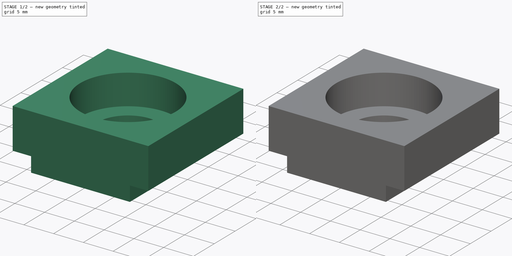
[diagram: build sequence overview — one tinted view per stage of 2, left to right]
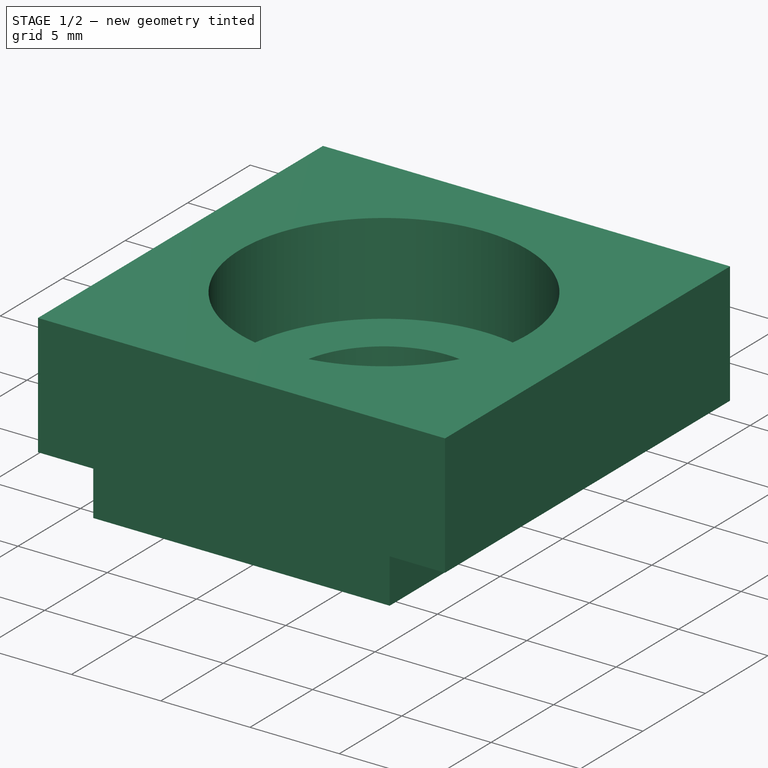
[diagram: stage 1 of 2 — iso view after this stage's code; geometry added in this stage tinted green]
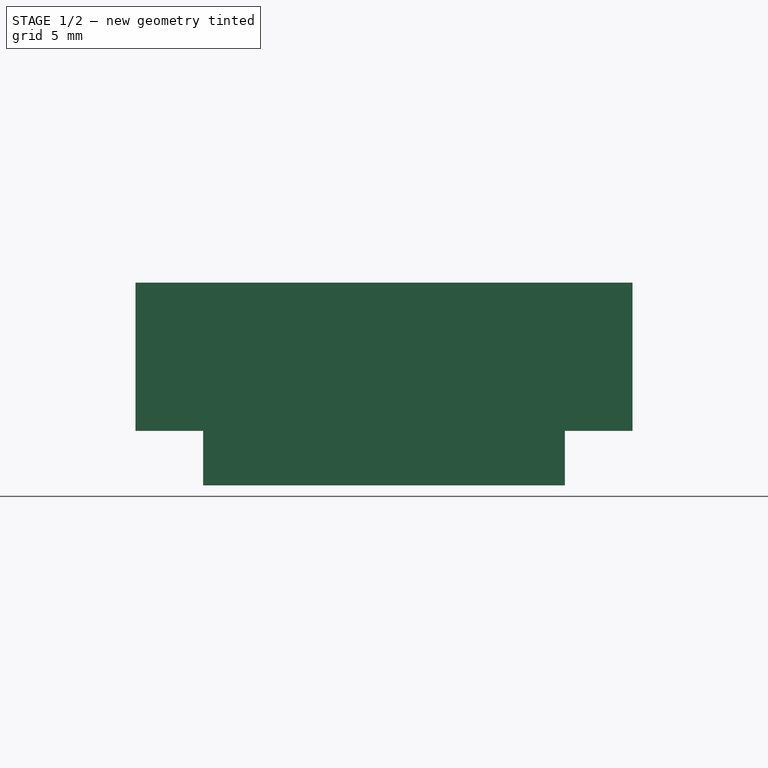
[diagram: stage 1 of 2 — front view after this stage's code; geometry added in this stage tinted green]
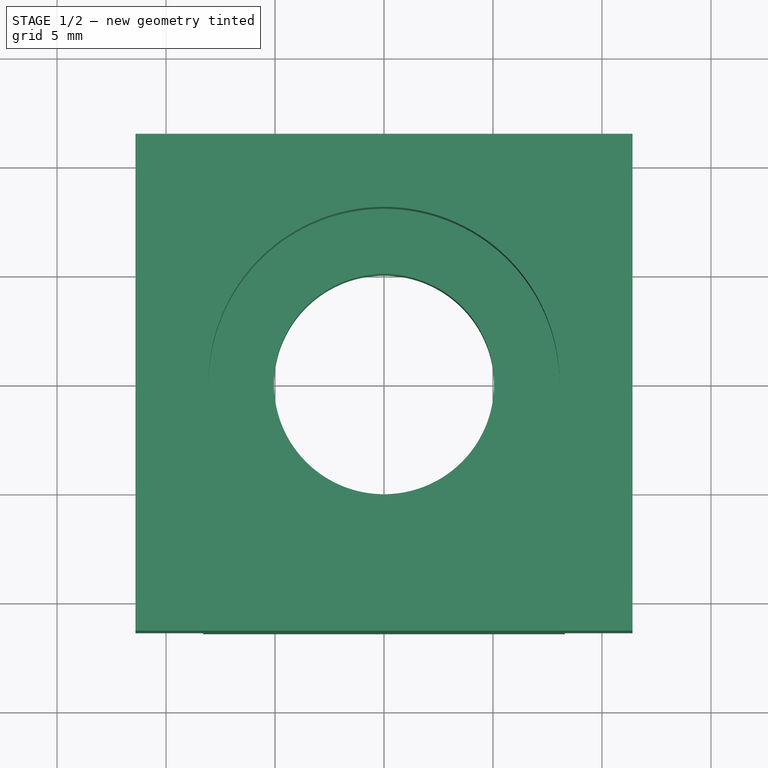
[diagram: stage 1 of 2 — top view after this stage's code; geometry added in this stage tinted green]
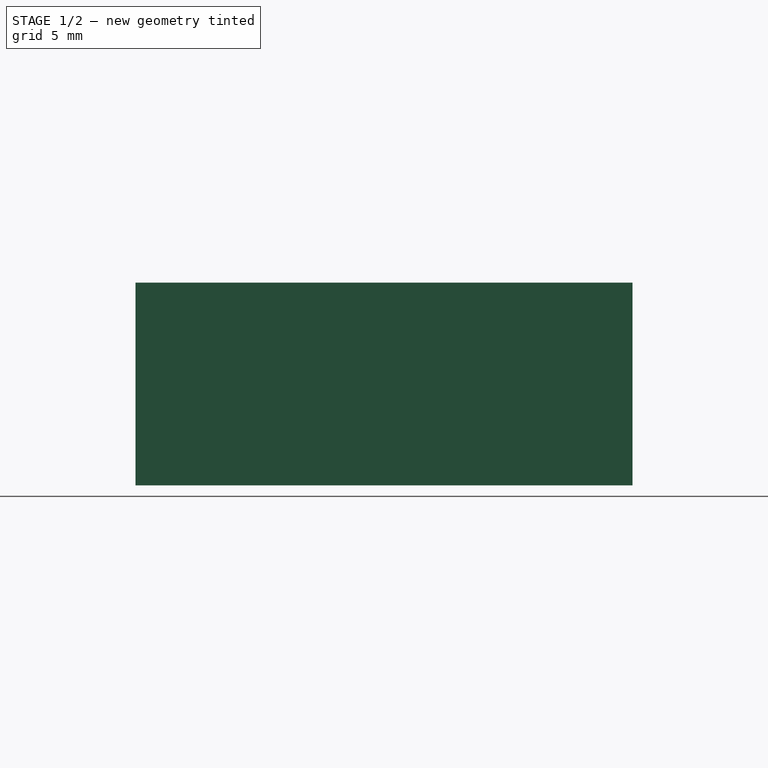
[diagram: stage 1 of 2 — right view after this stage's code; geometry added in this stage tinted green]
FCSTD DOCUMENT  (FreeCAD 0.20RUnknown)
Label: BearingSupport
License: All rights reserved
LicenseURL: http://en.wikipedia.org/wiki/All_rights_reserved
objects: Sketcher::SketchObject×4, PartDesign::Pocket×2, PartDesign::Pad×1, PartDesign::Groove×1, PartDesign::Body×1
note: 13 computed .brp shape members not serialized (recipe doc carries the construction recipe); baked Part::Feature solids carry a one-line shape summary decoded from their .brp
EXTERNAL_REF file=SharedParameters.FCStd obj=Spreadsheet

FEATURE [Sketcher::SketchObject] Sketch  label="MainBodySketch"
  FullyConstrained = true
  MapMode = 5
  Placement = pos=(0,0,0) rot=(1,0,0;1.5708rad)
  Support = -> [XZ_Plane]
  expr: Constraints[19] = <<SharedParameters>>#<<Parameters>>.FilamentWheel_SupportWidth - <<SharedParameters>>#<<Parameters>>.Tolerance
  expr: Constraints[20] = <<SharedParameters>>#<<Parameters>>.FilamentWheel_SupportWidth - 0.2mm - <<SharedParameters>>#<<Parameters>>.WallThinkness * 2 - <<SharedParameters>>#<<Parameters>>.Tolerance
  expr: Constraints[21] = <<SharedParameters>>#<<Parameters>>.FilamentWheel_SupportTeethWidth - <<SharedParameters>>#<<Parameters>>.Tolerance
  expr: Constraints[22] = <<SharedParameters>>#<<Parameters>>.FilamentWheel_SupportWallThinkness
  sketch-geometry (8):
    g0: LineSegment StartX=-11.4 StartY=9.3 StartZ=0 EndX=11.4 EndY=9.3 EndZ=0
    g1: LineSegment StartX=11.4 StartY=9.3 StartZ=0 EndX=11.4 EndY=2.5 EndZ=0
    g2: LineSegment StartX=-11.4 StartY=2.5 StartZ=0 EndX=-11.4 EndY=9.3 EndZ=0
    g3: LineSegment StartX=8.3 StartY=2.5 StartZ=0 EndX=8.3 EndY=0 EndZ=0
    g4: LineSegment StartX=8.3 StartY=0 StartZ=0 EndX=-8.3 EndY=0 EndZ=0
    g5: LineSegment StartX=-8.3 StartY=0 StartZ=0 EndX=-8.3 EndY=2.5 EndZ=0
    g6: LineSegment StartX=11.4 StartY=2.5 StartZ=0 EndX=8.3 EndY=2.5 EndZ=0
    g7: LineSegment StartX=-8.3 StartY=2.5 StartZ=0 EndX=-11.4 EndY=2.5 EndZ=0
  constraints (23):
    c: Coincident(g0,g1)
    c: Coincident(g1,g6)
    c: Coincident(g7,g2)
    c: Coincident(g2,g0)
    c: Horizontal(g0)
    c: Vertical(g1)
    c: Vertical(g2)
    c: Coincident(g3,g4)
    c: Coincident(g4,g5)
    c: Horizontal(g4)
    c: Vertical(g3)
    c: Vertical(g5)
    c: Horizontal(g6)
    c: Horizontal(g7)
    c: Coincident(g7,g5)
    c: Equal(g7,g6)
    c: Symmetric(g5,g3,g-2)
    c: Coincident(g6,g3)
    c: PointOnObject(g3,g-1)
    c: DistanceX(g0,g0) = 22.8
    c: DistanceX(g4,g4) = 16.6
    c: DistanceY(g2,g2) = 6.8
    c: DistanceY(g3,g3) = 2.5
FEATURE [PartDesign::Pad] Pad  label="MainBodyPad"
  Direction = (0,-1,2e-16)
  Length = 22.8
  Length2 = 10
  Midplane = true
  Placement = pos=(0,0,0) rot=(1,0,0;1.5708rad)
  Profile = -> Sketch
  ReferenceAxis = -> Sketch [N_Axis]
  Refine = true
  Type = 0
  expr: Length = <<SharedParameters>>#<<Parameters>>.FilamentWheel_SupportWidth - <<SharedParameters>>#<<Parameters>>.Tolerance
FEATURE [Sketcher::SketchObject] Sketch001  label="BearingHoleSketch"
  FullyConstrained = true
  MapMode = 5
  Placement = pos=(0,0,0) rot=(1,0,0;1.5708rad)
  Support = -> [XZ_Plane]
  expr: Constraints[13] = <<SharedParameters>>#<<Parameters>>.FilamentWheel_SupportTeethWidth - <<SharedParameters>>#<<Parameters>>.Tolerance + <<SharedParameters>>#<<Parameters>>.FilamentWheel_SupportWallThinkness
  expr: Constraints[14] = <<SharedParameters>>#<<Parameters>>.Bearing_outerRadius
  expr: Constraints[15] = <<SharedParameters>>#<<Parameters>>.Bearing_height
  expr: Constraints[16] = <<SharedParameters>>#<<Parameters>>.WallThinkness
  sketch-geometry (6):
    g0: LineSegment StartX=0 StartY=9.3 StartZ=0 EndX=8.05 EndY=9.3 EndZ=0
    g1: LineSegment StartX=8.05 StartY=9.3 StartZ=0 EndX=8.05 EndY=4.2 EndZ=0
    g2: LineSegment StartX=8.05 StartY=4.2 StartZ=0 EndX=5.05 EndY=4.2 EndZ=0
    g3: LineSegment StartX=5.05 StartY=4.2 StartZ=0 EndX=5.05 EndY=0 EndZ=0
    g4: LineSegment StartX=5.05 StartY=0 StartZ=0 EndX=0 EndY=0 EndZ=0
    g5: LineSegment StartX=0 StartY=0 StartZ=0 EndX=0 EndY=9.3 EndZ=0
  constraints (17):
    c: PointOnObject(g0,g-2)
    c: Horizontal(g0)
    c: Coincident(g0,g1)
    c: Coincident(g1,g2)
    c: Horizontal(g2)
    c: Coincident(g2,g3)
    c: Vertical(g3)
    c: Coincident(g3,g4)
    c: Coincident(g4,g5)
    c: Coincident(g5,g0)
    c: Horizontal(g4)
    c: Coincident(g4,g-1)
    c: Vertical(g1)
    c: DistanceY(g0) = 9.3
    c: DistanceX(g0,g0) = 8.05
    c: DistanceY(g1,g1) = 5.1
    c: DistanceX(g2,g2) = 3
FEATURE [PartDesign::Groove] Groove  label="BearingHoleGroove"
  Angle = 360
  Axis = (0,2e-16,1)
  Base = (0,0,0)
  BaseFeature = -> Pad
  Placement = pos=(0,0,0) rot=(1,0,0;1.5708rad)
  Profile = -> Sketch001
  ReferenceAxis = -> Sketch001 [V_Axis]
  Refine = true
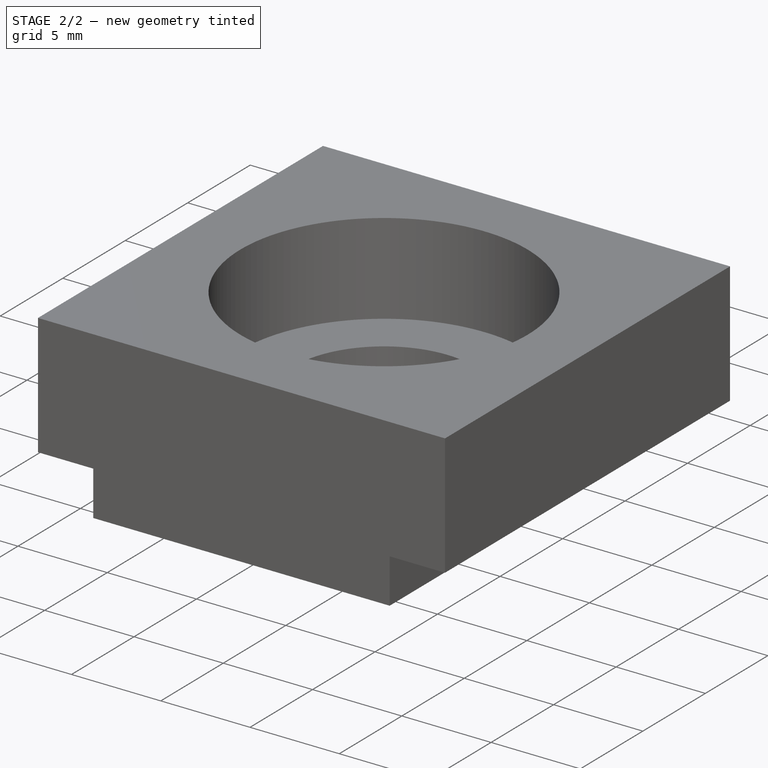
[diagram: stage 2 of 2 — iso view after this stage's code; geometry added in this stage tinted green]
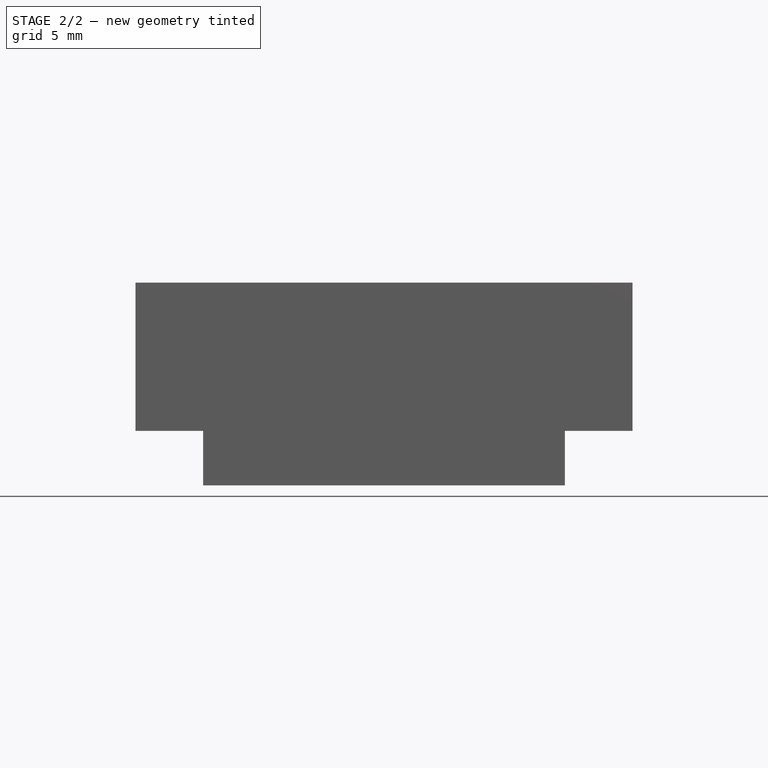
[diagram: stage 2 of 2 — front view after this stage's code; geometry added in this stage tinted green]
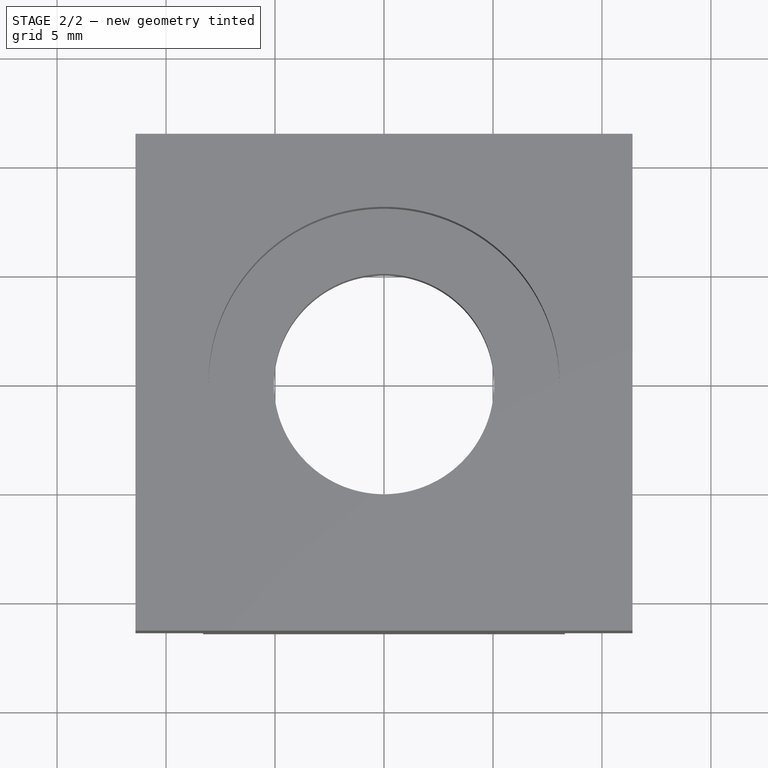
[diagram: stage 2 of 2 — top view after this stage's code; geometry added in this stage tinted green]
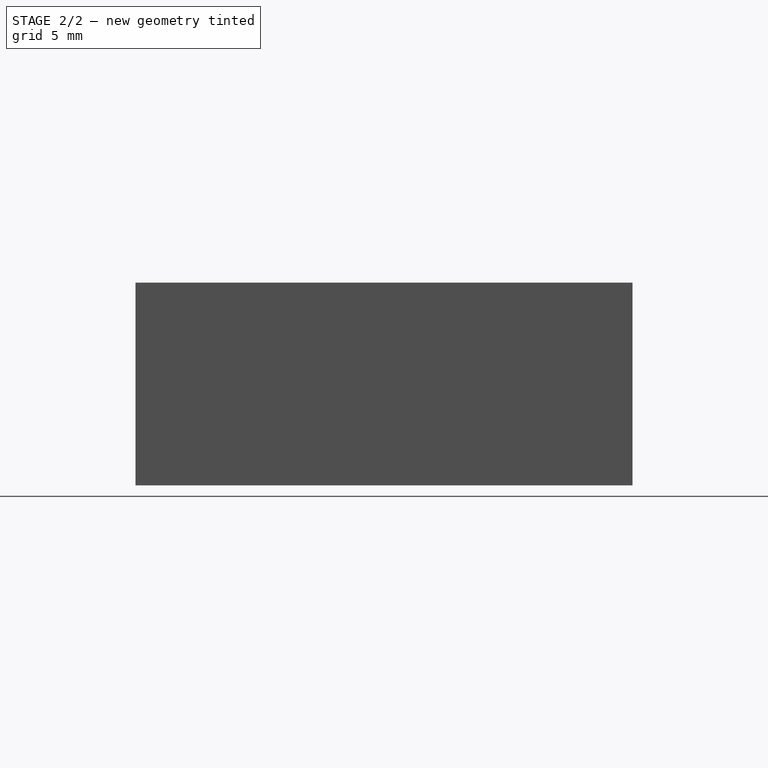
[diagram: stage 2 of 2 — right view after this stage's code; geometry added in this stage tinted green]
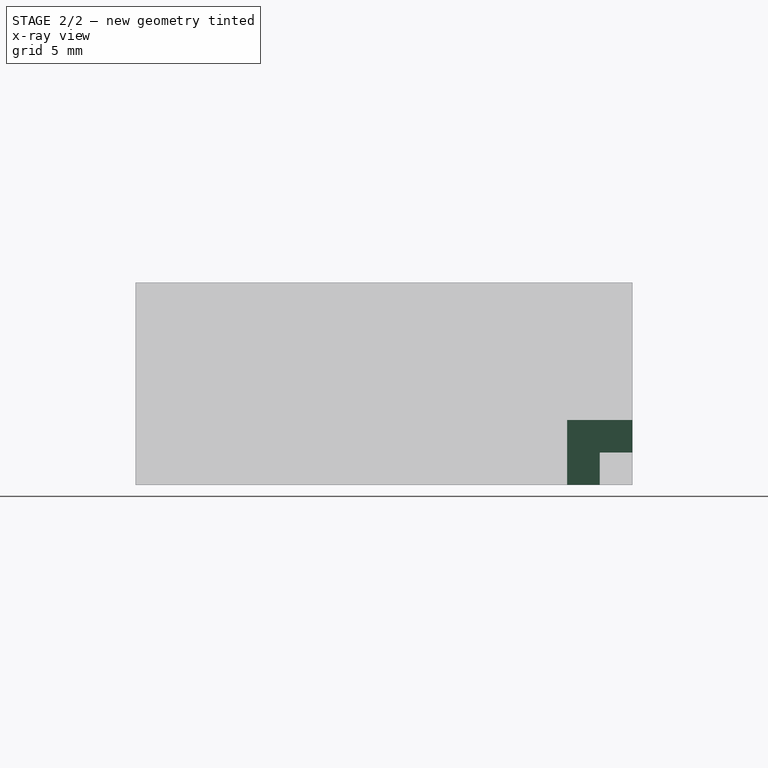
[diagram: stage 2 of 2 — x-ray composite at the right view; earlier geometry ghosted, this stage's added geometry solid]
FEATURE [Sketcher::SketchObject] Sketch002  label="RubberHoleSketch001"
  FullyConstrained = true
  MapMode = 5
  Placement = pos=(0,0,0) rot=(0,1,0;3.14159rad)
  Support = -> [XY_Plane]
  expr: Constraints[10] = (<<SharedParameters>>#<<Parameters>>.FilamentWheel_SupportWidth - <<SharedParameters>>#<<Parameters>>.Tolerance) / 2 - <<SharedParameters>>#<<Parameters>>.WallThinkness
  expr: Constraints[8] = <<SharedParameters>>#<<Parameters>>.WallThinkness / 2
  sketch-geometry (4):
    g0: LineSegment StartX=0.75 StartY=9.9 StartZ=0 EndX=-0.75 EndY=9.9 EndZ=0
    g1: LineSegment StartX=-0.75 StartY=9.9 StartZ=0 EndX=-0.75 EndY=8.4 EndZ=0
    g2: LineSegment StartX=-0.75 StartY=8.4 StartZ=0 EndX=0.75 EndY=8.4 EndZ=0
    g3: LineSegment StartX=0.75 StartY=8.4 StartZ=0 EndX=0.75 EndY=9.9 EndZ=0
  constraints (11):
    c: Coincident(g0,g1)
    c: Coincident(g1,g2)
    c: Coincident(g2,g3)
    c: Coincident(g3,g0)
    c: Horizontal(g0)
    c: Vertical(g1)
    c: Vertical(g3)
    c: Equal(g2,g1)
    c: DistanceX(g0,g0) = 1.5
    c: Symmetric(g1,g2,g-2)
    c: DistanceY(g1) = 8.4
FEATURE [PartDesign::Pocket] Pocket  label="RubberHolePocket001"
  BaseFeature = -> Groove
  Direction = (0,0,1)
  Length = 3
  Length2 = 5
  Placement = pos=(0,0,0) rot=(1,0,0;1.5708rad)
  Profile = -> Sketch002
  ReferenceAxis = -> Sketch002 [N_Axis]
  Refine = true
  Type = 0
  expr: Length = <<SharedParameters>>#<<Parameters>>.WallThinkness
FEATURE [Sketcher::SketchObject] Sketch003  label="RubberHoleSketch002"
  AttachmentOffset = pos=(0,0,11.4) rot=(0,0,1;0rad)
  FullyConstrained = true
  MapMode = 5
  Placement = pos=(0,11.4,-2.5e-15) rot=(0,0.707107,0.707107;3.14159rad)
  Support = -> [XZ_Plane]
  expr: .AttachmentOffset.Base.z = (<<SharedParameters>>#<<Parameters>>.FilamentWheel_SupportWidth - <<SharedParameters>>#<<Parameters>>.Tolerance) / 2
  expr: Constraints[10] = <<SharedParameters>>#<<Parameters>>.WallThinkness
  expr: Constraints[9] = <<SharedParameters>>#<<Parameters>>.WallThinkness / 2
  sketch-geometry (4):
    g0: LineSegment StartX=-0.75 StartY=3 StartZ=0 EndX=0.75 EndY=3 EndZ=0
    g1: LineSegment StartX=0.75 StartY=3 StartZ=0 EndX=0.75 EndY=1.5 EndZ=0
    g2: LineSegment StartX=0.75 StartY=1.5 StartZ=0 EndX=-0.75 EndY=1.5 EndZ=0
    g3: LineSegment StartX=-0.75 StartY=1.5 StartZ=0 EndX=-0.75 EndY=3 EndZ=0
  constraints (11):
    c: Coincident(g0,g1)
    c: Coincident(g1,g2)
    c: Coincident(g2,g3)
    c: Coincident(g3,g0)
    c: Horizontal(g0)
    c: Vertical(g1)
    c: Vertical(g3)
    c: Equal(g0,g3)
    c: Symmetric(g2,g1,g-2)
    c: DistanceX(g0,g0) = 1.5
    c: DistanceY(g0) = 3
FEATURE [PartDesign::Pocket] Pocket001  label="RubberHolePocket002"
  BaseFeature = -> Pocket
  Direction = (0,-1,2e-16)
  Length = 3
  Length2 = 5
  Placement = pos=(0,0,0) rot=(1,0,0;1.5708rad)
  Profile = -> Sketch003
  ReferenceAxis = -> Sketch003 [N_Axis]
  Refine = true
  Type = 0
  expr: Length = <<SharedParameters>>#<<Parameters>>.WallThinkness
FEATURE [PartDesign::Body] Body  label="BearingSupport"
  Group = -> [Sketch,Pad,Sketch001,Groove,Sketch002,Pocket,Sketch003,Pocket001]
  Origin = -> Origin
  Tip = -> Pocket001
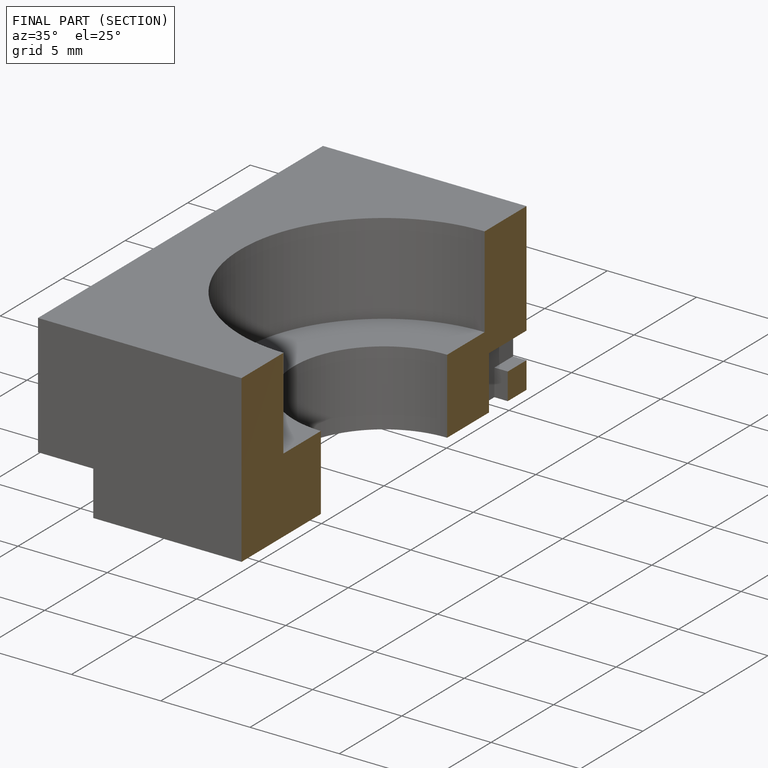
[diagram: finished part — half-section view (interior)]
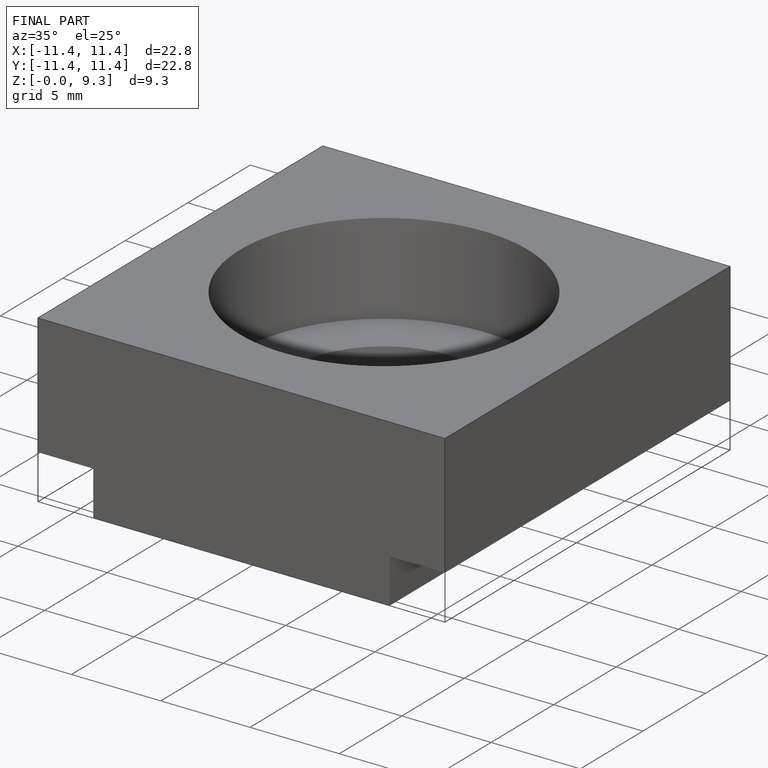
[diagram: finished part — iso view with bounding-box wireframe]
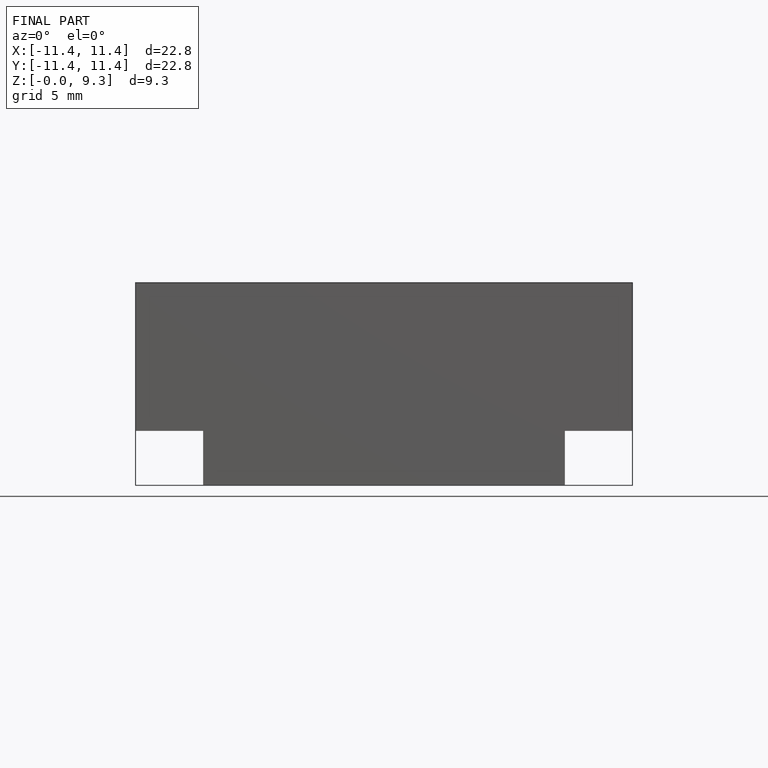
[diagram: finished part — front view with bounding-box wireframe]
